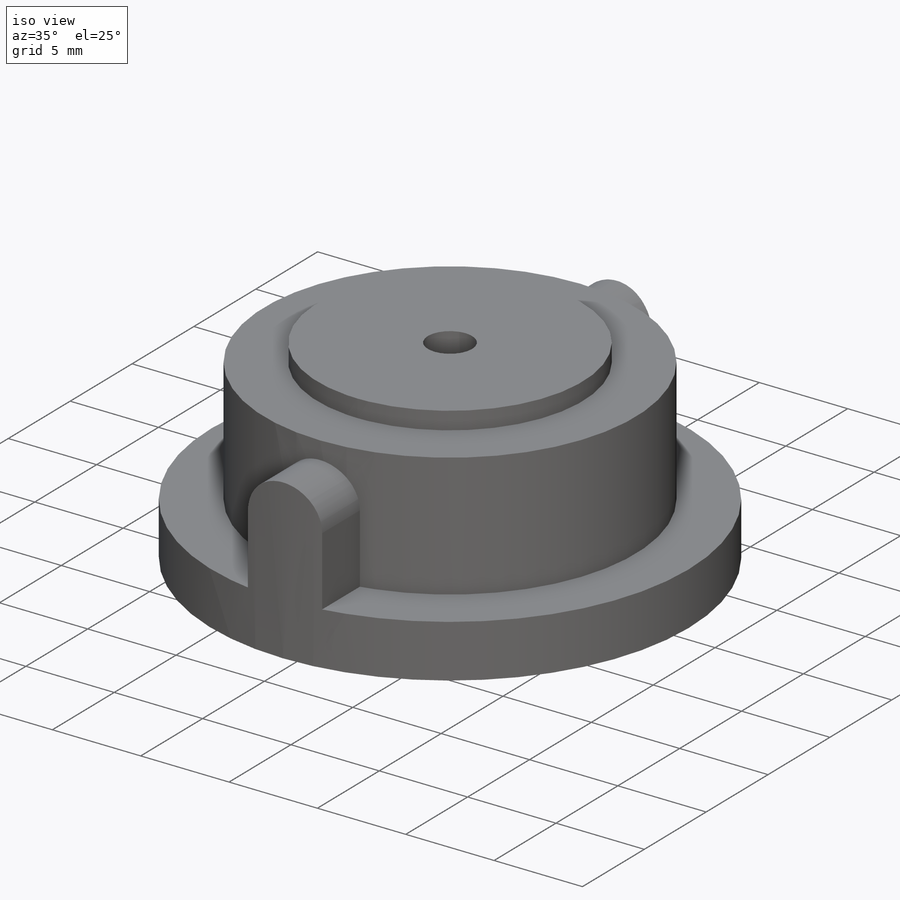
[diagram: iso view]
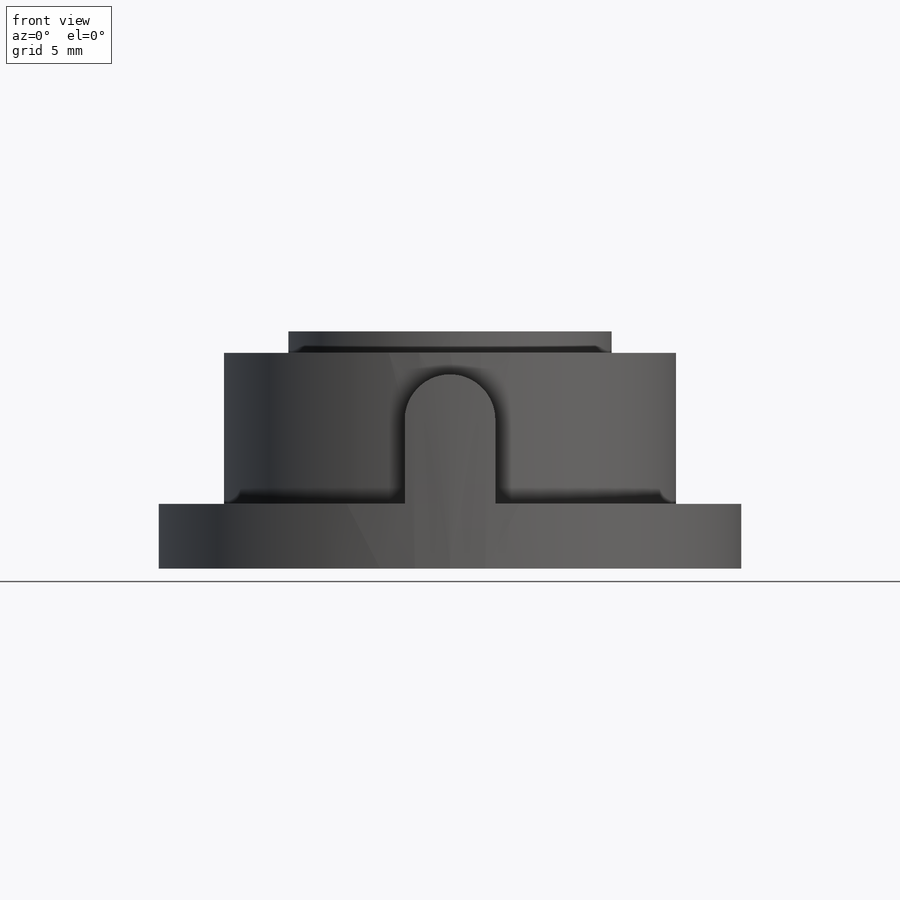
[diagram: front view]
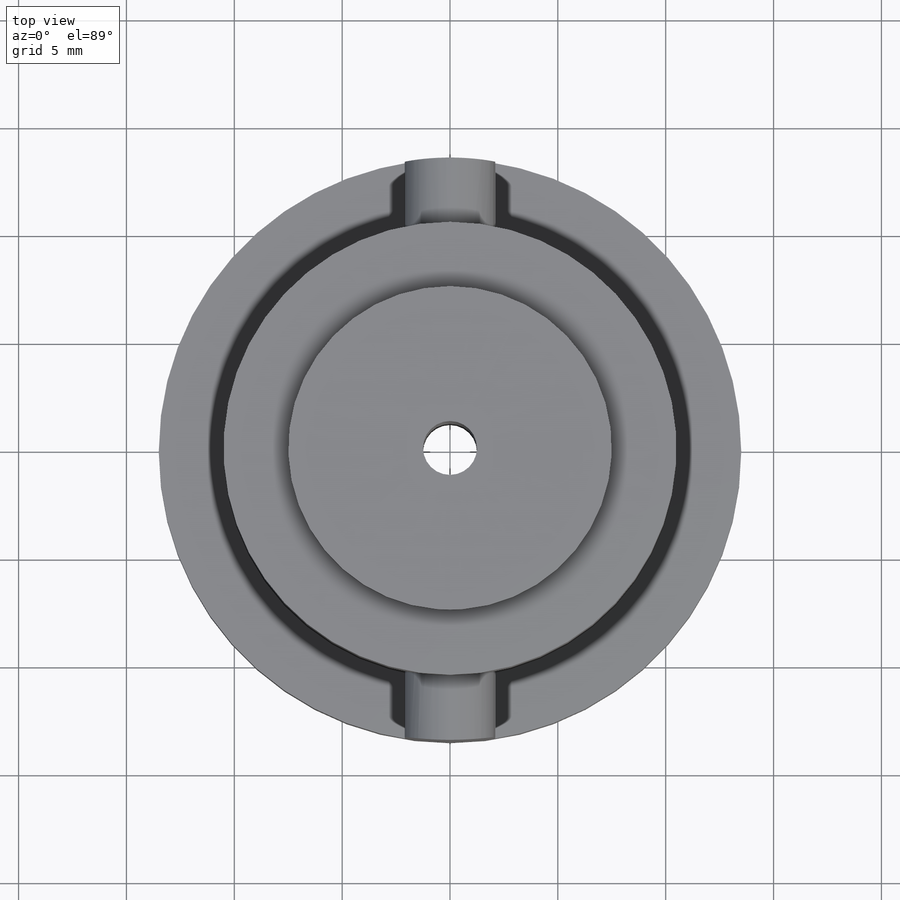
[diagram: top view]
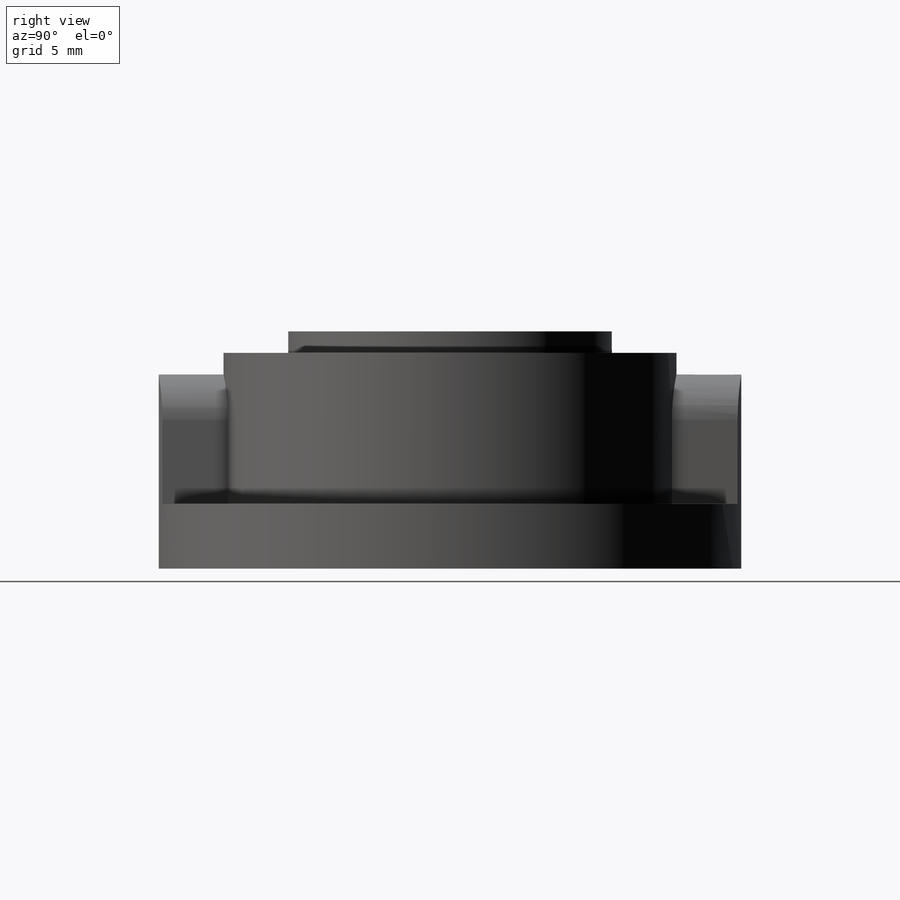
[diagram: right view]
SOLIDWORKS PART (.sldprt)
format: sldprt  version: not decoded by parser v0  size: 237,568 bytes
history: native  units: mm
features: sketch x8, extrude x5, plane x3, cut_extrude x3, pattern_linear x2, material x1 (+8 scaffold rows collapsed)
feature tree (30):
  scaffold x8  (default folders/planes/origin — collapsed)
  material  "Materiale <non specificato>"
  plane  "Piano frontale"
  plane  "Piano superiore"
  plane  "Piano destro"
  sketch  "Schizzo1"  dims[D1=27.0mm]
  extrude  "Estrusione-Estrusione1"  Depth=3mm
  sketch  "Schizzo2"  dims[D1=21.0mm]
  extrude  "Estrusione-Estrusione2"  Depth=7mm
  sketch  "Schizzo3"  dims[D1=2.1mm D2=~2.963481mm]
  extrude  "Estrusione-Estrusione3"  Depth=6mm
  sketch  "Schizzo4"
  extrude  "Estrusione-Estrusione4"  Depth=6mm
  sketch  "Schizzo3D1"  dims[D1=12.0mm D2=2.1mm]
  cut_extrude  "Taglio-Estrusione2"  [1 undecoded]
  sketch  "Schizzo5"
  cut_extrude  "Taglio-Estrusione3"  Depth=7mm
  pattern_linear  "Ripetizione a L1"  Count1=2 Count2=1 Spacing1=24mm Spacing2=10mm
  pattern_linear  "Ripetizione a L2"  Count1=2 Count2=1 Spacing1=27mm Spacing2=10mm
  sketch  "Schizzo6"  dims[D1=~1.991658mm]
  extrude  "Estrusione-Estrusione5"  Depth=1mm
  sketch  "Schizzo7"  dims[D1=~1.678276mm]
  cut_extrude  "Taglio-Estrusione4"  [1 undecoded]
decode coverage: 14 of 18 modeling features carry decoded parameters
note: ~ marks probable driven/reference dimensions
note: 2 parameter values undecoded
note: suppression state not decoded; provenance and decode notes live in map.json
